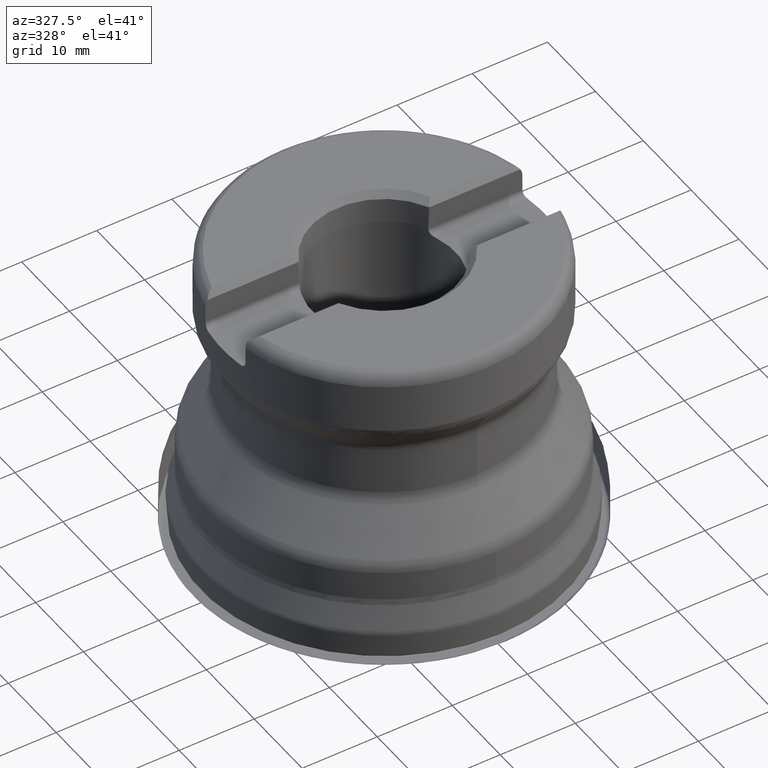
[diagram: clean part render]
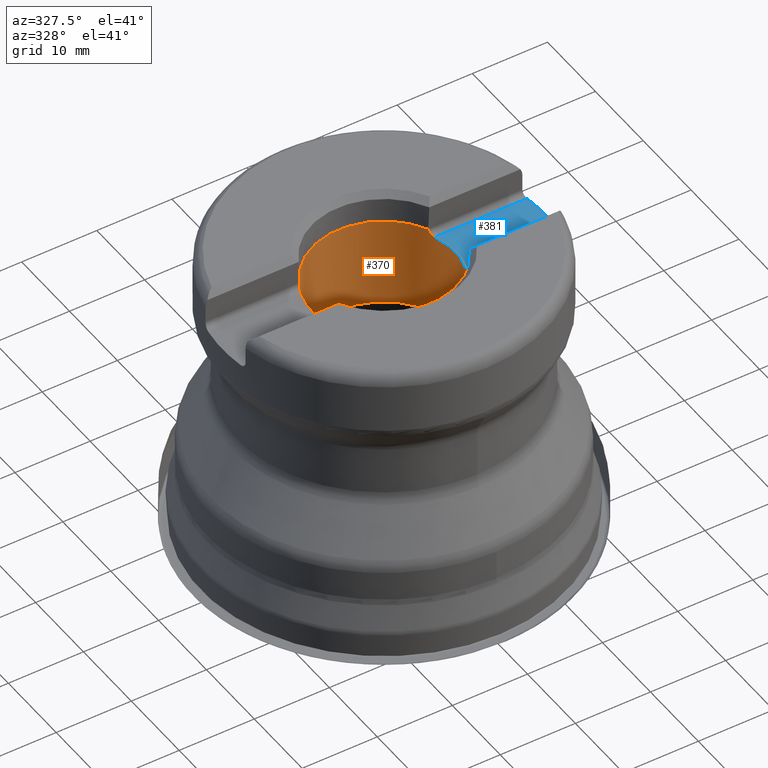
[diagram: same view with the hole feature highlighted: cylindrical wall and planar end face, labeled with their STEP entity ids]
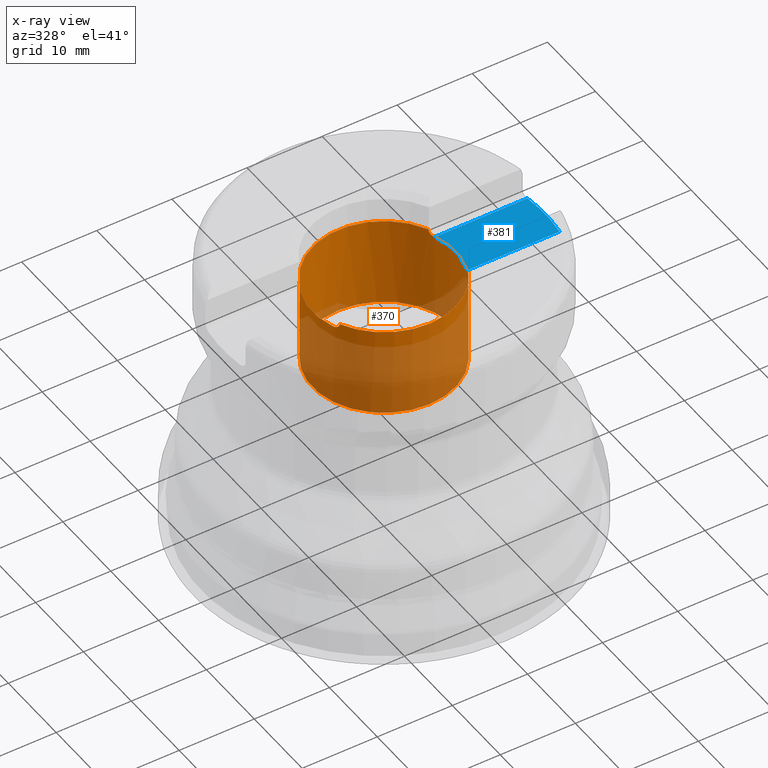
[diagram: x-ray of the same camera — body ghosted, the hole faces saturated]
A machine part, auxiliary view. The highlighted faces form one hole feature of diameter 19.05 mm: the cylindrical wall (entity #370, orange) and its adjacent planar end face (entity #381, blue) — they share a circular edge in the B-rep.
The next image is the same camera in x-ray (body ghosted, the hole faces saturated) — the bore reads through the body.
Wall:
#155=CYLINDRICAL_SURFACE('',#1228,9.525);
#187=FACE_BOUND('',#495,.T.);
#188=FACE_BOUND('',#496,.T.);
#370=ADVANCED_FACE('',(#187,#188),#155,.F.);
#495=EDGE_LOOP('',(#674,#675,#676,#677,#678,#679,#680,#681));
#496=EDGE_LOOP('',(#682));
#674=ORIENTED_EDGE('',*,*,#947,.F.);
#675=ORIENTED_EDGE('',*,*,#988,.T.);
#676=ORIENTED_EDGE('',*,*,#989,.T.);
#677=ORIENTED_EDGE('',*,*,#990,.T.);
#678=ORIENTED_EDGE('',*,*,#954,.F.);
#679=ORIENTED_EDGE('',*,*,#991,.T.);
#680=ORIENTED_EDGE('',*,*,#992,.T.);
#681=ORIENTED_EDGE('',*,*,#993,.T.);
#682=ORIENTED_EDGE('',*,*,#994,.T.);
#848=VERTEX_POINT('',#1924);
#849=VERTEX_POINT('',#1926);
#854=VERTEX_POINT('',#1950);
#855=VERTEX_POINT('',#1952);
#882=VERTEX_POINT('',#2109);
#883=VERTEX_POINT('',#2111);
#884=VERTEX_POINT('',#2144);
#885=VERTEX_POINT('',#2146);
#886=VERTEX_POINT('',#2164);
#947=EDGE_CURVE('',#848,#849,#1046,.T.);
#954=EDGE_CURVE('',#854,#855,#1048,.T.);
#988=EDGE_CURVE('',#848,#882,#1150,.T.);
#989=EDGE_CURVE('',#882,#883,#1070,.T.);
#990=EDGE_CURVE('',#883,#855,#1151,.T.);
#991=EDGE_CURVE('',#854,#884,#1152,.T.);
#992=EDGE_CURVE('',#884,#885,#1071,.T.);
#993=EDGE_CURVE('',#885,#849,#1153,.T.);
#994=EDGE_CURVE('',#886,#886,#1072,.T.);
#1046=CIRCLE('',#1183,9.525);
#1048=CIRCLE('',#1188,9.525);
#1070=CIRCLE('',#1225,9.525);
#1071=CIRCLE('',#1226,9.525);
#1072=CIRCLE('',#1227,9.525);
#1150=B_SPLINE_CURVE_WITH_KNOTS('',3,(#2093,#2094,#2095,#2096,#2097,#2098,
#2099,#2100,#2101,#2102,#2103,#2104,#2105,#2106,#2107,#2108),
 .UNSPECIFIED.,.F.,.F.,(4,3,3,3,3,4),(0.,0.0449708200580502,0.266760857830187,
0.508329029404616,0.75426019539694,1.),.UNSPECIFIED.);
#1151=B_SPLINE_CURVE_WITH_KNOTS('',3,(#2112,#2113,#2114,#2115,#2116,#2117,
#2118,#2119,#2120,#2121,#2122,#2123,#2124,#2125,#2126,#2127),
 .UNSPECIFIED.,.F.,.F.,(4,3,3,3,3,4),(0.,0.154994526328217,0.38644226448146,
0.597973450863603,0.798620534151843,1.),.UNSPECIFIED.);
#1152=B_SPLINE_CURVE_WITH_KNOTS('',3,(#2128,#2129,#2130,#2131,#2132,#2133,
#2134,#2135,#2136,#2137,#2138,#2139,#2140,#2141,#2142,#2143),
 .UNSPECIFIED.,.F.,.F.,(4,3,3,3,3,4),(0.,0.182423398369835,0.418179845529783,
0.664710030979067,0.906916599090556,1.),.UNSPECIFIED.);
#1153=B_SPLINE_CURVE_WITH_KNOTS('',3,(#2147,#2148,#2149,#2150,#2151,#2152,
#2153,#2154,#2155,#2156,#2157,#2158,#2159,#2160,#2161,#2162),
 .UNSPECIFIED.,.F.,.F.,(4,3,3,3,3,4),(0.,0.154125161148393,0.385811019184606,
0.597559834746224,0.79841334934536,1.),.UNSPECIFIED.);
#1183=AXIS2_PLACEMENT_3D('',#1925,#1322,#1323);
#1188=AXIS2_PLACEMENT_3D('',#1951,#1332,#1333);
#1225=AXIS2_PLACEMENT_3D('',#2110,#1412,#1413);
#1226=AXIS2_PLACEMENT_3D('',#2145,#1414,#1415);
#1227=AXIS2_PLACEMENT_3D('',#2163,#1416,#1417);
#1228=AXIS2_PLACEMENT_3D('',#2165,#1418,#1419);
#1322=DIRECTION('',(0.,-1.17145536458252E-15,-1.));
#1323=DIRECTION('',(0.,-1.,1.45698559662094E-15));
#1332=DIRECTION('',(0.,-1.17145536458252E-15,-1.));
#1333=DIRECTION('',(0.,-1.,1.45698559662094E-15));
#1412=DIRECTION('',(0.,1.17145536458252E-15,1.));
#1413=DIRECTION('',(0.,1.,-1.45698559662094E-15));
#1414=DIRECTION('',(0.,1.17145536458252E-15,1.));
#1415=DIRECTION('',(0.,1.,-1.45698559662094E-15));
#1416=DIRECTION('',(0.,-1.17145536458252E-15,-1.));
#1417=DIRECTION('',(0.,-1.,1.09273919746571E-15));
#1418=DIRECTION('',(0.,1.17145536458252E-15,1.));
#1419=DIRECTION('',(0.,-1.,1.45698559662094E-15));
#1924=CARTESIAN_POINT('',(8.56201245005217,-4.17343597113352,35.878));
#1925=CARTESIAN_POINT('',(0.,4.20294755704918E-14,35.878));
#1926=CARTESIAN_POINT('',(-8.56201245005217,-4.17343597113352,35.878));
#1950=CARTESIAN_POINT('',(-8.56201245005217,4.17343597113361,35.878));
#1951=CARTESIAN_POINT('',(0.,4.20294755704918E-14,35.878));
#1952=CARTESIAN_POINT('',(8.56201245005217,4.17343597113361,35.878));
#2093=CARTESIAN_POINT('',(8.56201245005217,-4.17343597113352,35.878));
#2094=CARTESIAN_POINT('',(8.56259478694177,-4.17224127790392,35.8589222790203));
#2095=CARTESIAN_POINT('',(8.56351096951703,-4.17036124778173,35.8398826476298));
#2096=CARTESIAN_POINT('',(8.56475338016902,-4.16780812140903,35.8209706459525));
#2097=CARTESIAN_POINT('',(8.57077609551436,-4.15543157476648,35.7292927433758));
#2098=CARTESIAN_POINT('',(8.5848906471496,-4.12642942167599,35.6389426139664));
#2099=CARTESIAN_POINT('',(8.60473861044074,-4.08461729492373,35.5586176848507));
#2100=CARTESIAN_POINT('',(8.62634322493626,-4.03910457069756,35.4711835686913));
#2101=CARTESIAN_POINT('',(8.65535796914865,-3.97700458631287,35.3925212932938));
#2102=CARTESIAN_POINT('',(8.68754375521946,-3.9054075973126,35.3291112117321));
#2103=CARTESIAN_POINT('',(8.72035233974468,-3.83242519880295,35.2644741382087));
#2104=CARTESIAN_POINT('',(8.75742974162443,-3.74733011078264,35.2134651939416));
#2105=CARTESIAN_POINT('',(8.79472698709914,-3.65764982227521,35.179595645411));
#2106=CARTESIAN_POINT('',(8.83201162308596,-3.56799985296417,35.1457375475293));
#2107=CARTESIAN_POINT('',(8.87058452639905,-3.47115669365122,35.128));
#2108=CARTESIAN_POINT('',(8.90701970358211,-3.37499999999996,35.128));
#2109=CARTESIAN_POINT('',(8.90701970358211,-3.37499999999996,35.128));
#2110=CARTESIAN_POINT('',(0.,4.11508840470549E-14,35.128));
#2111=CARTESIAN_POINT('',(8.90701970358378,3.37499999999932,35.1279999999863));
#2112=CARTESIAN_POINT('',(8.90701970358378,3.37499999999932,35.1279999999863));
#2113=CARTESIAN_POINT('',(8.88401691309611,3.43570705425448,35.1279999999862));
#2114=CARTESIAN_POINT('',(8.86025331894011,3.49650752200319,35.1349747331928));
#2115=CARTESIAN_POINT('',(8.83656106053045,3.55539218983185,35.1486036580483));
#2116=CARTESIAN_POINT('',(8.80119557648956,3.64328945755276,35.1689475828924));
#2117=CARTESIAN_POINT('',(8.76522535736257,3.72873236388561,35.2047107514579));
#2118=CARTESIAN_POINT('',(8.73180979069534,3.80540704512898,35.2536486260833));
#2119=CARTESIAN_POINT('',(8.70123020141515,3.87557435020454,35.2984331458609));
#2120=CARTESIAN_POINT('',(8.67209298562226,3.94004518526089,35.3553152014566));
#2121=CARTESIAN_POINT('',(8.64718765838693,3.9939667751048,35.421166564524));
#2122=CARTESIAN_POINT('',(8.62356787185393,4.04510508899238,35.4836188713683));
#2123=CARTESIAN_POINT('',(8.60324389034894,4.08790525492264,35.5556769636327));
#2124=CARTESIAN_POINT('',(8.58858216509959,4.1184804714037,35.632641254334));
#2125=CARTESIAN_POINT('',(8.57388970653518,4.14911977841605,35.7097668744664));
#2126=CARTESIAN_POINT('',(8.564578808317,4.16817095890705,35.7939244969971));
#2127=CARTESIAN_POINT('',(8.56201245005217,4.17343597113361,35.878));
#2128=CARTESIAN_POINT('',(-8.56201245005217,4.17343597113361,35.878));
#2129=CARTESIAN_POINT('',(-8.56434591919886,4.16864874257088,35.8015540902696));
#2130=CARTESIAN_POINT('',(-8.57221985974299,4.15252898415604,35.7251056615514));
#2131=CARTESIAN_POINT('',(-8.58466598255063,4.12663724696495,35.6540630565714));
#2132=CARTESIAN_POINT('',(-8.60065458063607,4.09337607912332,35.5627999639983));
#2133=CARTESIAN_POINT('',(-8.62469235814658,4.04288140253332,35.4776395450139));
#2134=CARTESIAN_POINT('',(-8.6529905092489,3.98137918903096,35.406172174841));
#2135=CARTESIAN_POINT('',(-8.68260450437867,3.91701716606543,35.3313816224623));
#2136=CARTESIAN_POINT('',(-8.71776480549342,3.83858485278458,35.2689270744784));
#2137=CARTESIAN_POINT('',(-8.75416602176461,3.75369181784843,35.2233067993129));
#2138=CARTESIAN_POINT('',(-8.78997986043372,3.67016863459313,35.1784226624025));
#2139=CARTESIAN_POINT('',(-8.82801612126549,3.57796909678977,35.1484331887989));
#2140=CARTESIAN_POINT('',(-8.86479208555795,3.48440615884964,35.1355163772003));
#2141=CARTESIAN_POINT('',(-8.87900470153886,3.44824737599862,35.1305244840853));
#2142=CARTESIAN_POINT('',(-8.89314018017739,3.41162968546439,35.128));
#2143=CARTESIAN_POINT('',(-8.90701970358211,3.37500000000004,35.128));
#2144=CARTESIAN_POINT('',(-8.90701970358211,3.37500000000004,35.128));
#2145=CARTESIAN_POINT('',(0.,4.11508840470549E-14,35.128));
#2146=CARTESIAN_POINT('',(-8.90701970358211,-3.37499999999996,35.128));
#2147=CARTESIAN_POINT('',(-8.90701970358211,-3.37499999999996,35.128));
#2148=CARTESIAN_POINT('',(-8.88401691309475,-3.43570705425427,35.128));
#2149=CARTESIAN_POINT('',(-8.86025331893978,-3.49650752200393,35.134974733193));
#2150=CARTESIAN_POINT('',(-8.83656106053045,-3.55539218983177,35.1486036580483));
#2151=CARTESIAN_POINT('',(-8.80119557648956,-3.64328945755268,35.1689475828924));
#2152=CARTESIAN_POINT('',(-8.76522535736257,-3.72873236388553,35.2047107514579));
#2153=CARTESIAN_POINT('',(-8.73180979069534,-3.8054070451289,35.2536486260833));
#2154=CARTESIAN_POINT('',(-8.70123020141515,-3.87557435020445,35.2984331458609));
#2155=CARTESIAN_POINT('',(-8.67209298562226,-3.94004518526081,35.3553152014566));
#2156=CARTESIAN_POINT('',(-8.64718765838693,-3.99396677510472,35.421166564524));
#2157=CARTESIAN_POINT('',(-8.62356787185394,-4.04510508899229,35.4836188713683));
#2158=CARTESIAN_POINT('',(-8.60324389034894,-4.08790525492256,35.5556769636327));
#2159=CARTESIAN_POINT('',(-8.58858216509959,-4.11848047140361,35.632641254334));
#2160=CARTESIAN_POINT('',(-8.57388970653518,-4.14911977841596,35.7097668744664));
#2161=CARTESIAN_POINT('',(-8.56457880831701,-4.16817095890696,35.7939244969971));
#2162=CARTESIAN_POINT('',(-8.56201245005217,-4.17343597113352,35.878));
#2163=CARTESIAN_POINT('',(0.,2.79720111955015E-14,23.878));
#2164=CARTESIAN_POINT('',(0.,-9.52499999999997,23.878));
#2165=CARTESIAN_POINT('',(0.,4.69495881017384E-14,40.078));
End face:
#290=PLANE('',#1249);
#310=LINE('',#2196,#336);
#311=LINE('',#2197,#337);
#336=VECTOR('',#1460,1.);
#337=VECTOR('',#1461,1.);
#381=ADVANCED_FACE('',(#449),#290,.F.);
#449=FACE_OUTER_BOUND('',#517,.T.);
#517=EDGE_LOOP('',(#703,#704,#705,#706));
#703=ORIENTED_EDGE('',*,*,#985,.T.);
#704=ORIENTED_EDGE('',*,*,#1005,.T.);
#705=ORIENTED_EDGE('',*,*,#989,.F.);
#706=ORIENTED_EDGE('',*,*,#1006,.T.);
#879=VERTEX_POINT('',#2069);
#880=VERTEX_POINT('',#2071);
#882=VERTEX_POINT('',#2109);
#883=VERTEX_POINT('',#2111);
#985=EDGE_CURVE('',#880,#879,#1068,.T.);
#989=EDGE_CURVE('',#882,#883,#1070,.T.);
#1005=EDGE_CURVE('',#879,#883,#310,.T.);
#1006=EDGE_CURVE('',#882,#880,#311,.T.);
#1068=CIRCLE('',#1220,21.5011);
#1070=CIRCLE('',#1225,9.525);
#1220=AXIS2_PLACEMENT_3D('',#2070,#1402,#1403);
#1225=AXIS2_PLACEMENT_3D('',#2110,#1412,#1413);
#1249=AXIS2_PLACEMENT_3D('',#2198,#1462,#1463);
#1402=DIRECTION('',(0.,1.17145536458252E-15,1.));
#1403=DIRECTION('',(0.,1.,-1.2908909597941E-15));
#1412=DIRECTION('',(0.,1.17145536458252E-15,1.));
#1413=DIRECTION('',(0.,1.,-1.45698559662094E-15));
#1460=DIRECTION('',(-1.,0.,0.));
#1461=DIRECTION('',(1.,0.,0.));
#1462=DIRECTION('',(0.,-1.17145536458252E-15,-1.));
#1463=DIRECTION('',(0.,1.,-1.17267306976032E-15));
#2069=CARTESIAN_POINT('',(21.2345632450964,3.37500000000004,35.128));
#2070=CARTESIAN_POINT('',(0.,4.11508840470549E-14,35.128));
#2071=CARTESIAN_POINT('',(21.2345632450964,-3.37499999999996,35.128));
#2109=CARTESIAN_POINT('',(8.90701970358211,-3.37499999999996,35.128));
#2110=CARTESIAN_POINT('',(0.,4.11508840470549E-14,35.128));
#2111=CARTESIAN_POINT('',(8.90701970358378,3.37499999999932,35.1279999999863));
#2196=CARTESIAN_POINT('',(30.,3.37500000000004,35.128));
#2197=CARTESIAN_POINT('',(30.,-3.37499999999996,35.128));
#2198=CARTESIAN_POINT('',(30.,4.17500000000004,35.128));